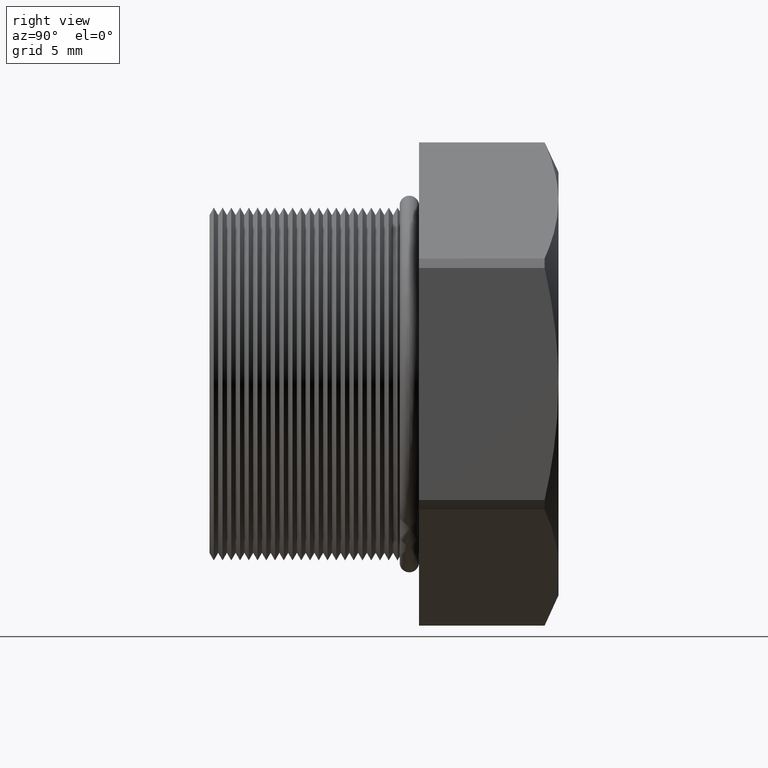
[diagram: clean part render]
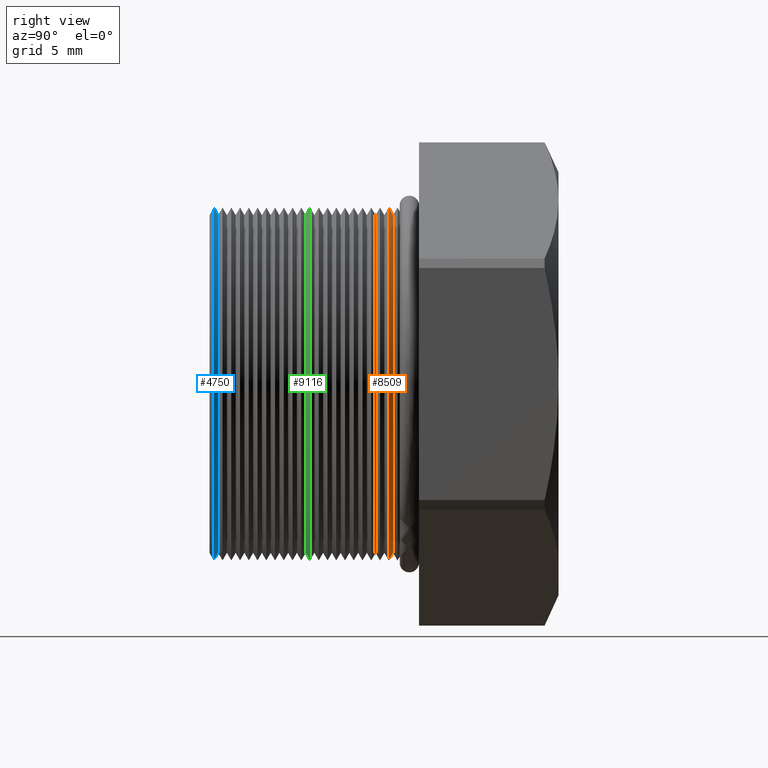
[diagram: same view with three faces highlighted in distinct colors, each labeled with its STEP entity id]
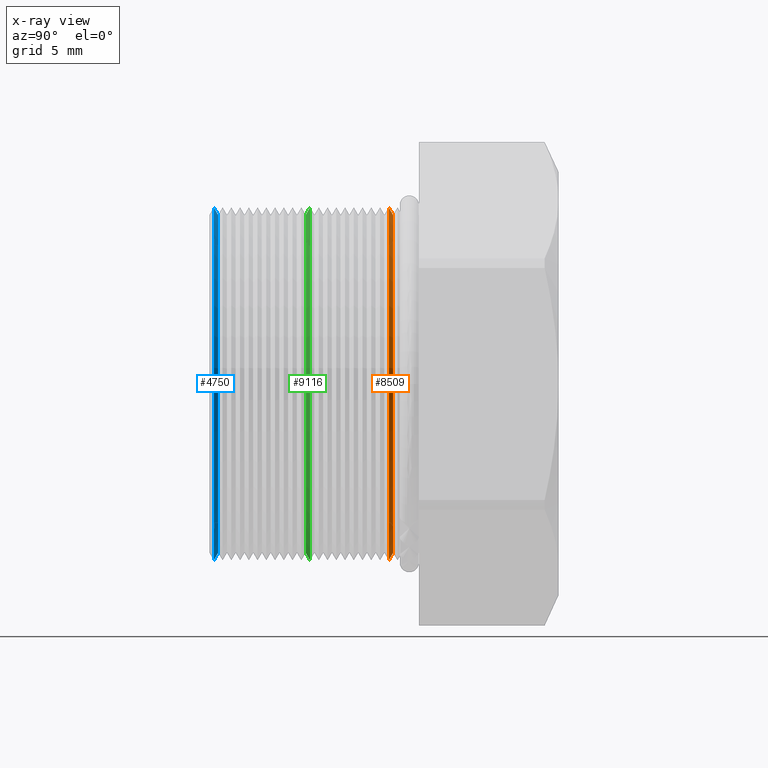
[diagram: x-ray of the same camera — body ghosted, the three highlighted faces saturated]
A machine part, right view with three faces highlighted in distinct colors.
The next image is the same camera in x-ray (body ghosted, the three faces saturated) — at least one of them is partly hidden behind the body in this view.
Their STEP definitions:

[orange] entity #8509 — the highlighted conical surface has half-angle 60 deg.
#5128 = CARTESIAN_POINT ( 'NONE',  ( 4.026318816969966200E-017, 0.09125489058294795900, 0.3287738815610546400 ) ) ;
#5146 = CARTESIAN_POINT ( 'NONE',  ( 0.0000000000000000000, 0.09920724481000890700, -0.3150000000000000000 ) ) ;
#5147 = CARTESIAN_POINT ( 'NONE',  ( 3.857637417314162700E-017, 0.09920724481000890700, 0.3150000000000000000 ) ) ;
#5173 = CARTESIAN_POINT ( 'NONE',  ( 0.0000000000000000000, 0.09125489058294795900, -0.3287738815610546400 ) ) ;
#5175 = DIRECTION ( 'NONE',  ( 0.0000000000000000000, 0.0000000000000000000, 1.000000000000000000 ) ) ;
#5176 = DIRECTION ( 'NONE',  ( -0.0000000000000000000, 1.000000000000000000, -0.0000000000000000000 ) ) ;
#5177 = CARTESIAN_POINT ( 'NONE',  ( 0.0000000000000000000, 0.09125489058294795900, 0.0000000000000000000 ) ) ;
#5178 = AXIS2_PLACEMENT_3D ( 'NONE', #5177, #5176, #5175 ) ;
#5179 = CIRCLE ( 'NONE', #5178, 0.3287738815610546400 ) ;
#5184 = DIRECTION ( 'NONE',  ( 0.0000000000000000000, 0.0000000000000000000, -1.000000000000000000 ) ) ;
#5185 = DIRECTION ( 'NONE',  ( 0.0000000000000000000, -1.000000000000000000, 0.0000000000000000000 ) ) ;
#5186 = CARTESIAN_POINT ( 'NONE',  ( 0.0000000000000000000, 0.09920724481000890700, 0.0000000000000000000 ) ) ;
#5187 = AXIS2_PLACEMENT_3D ( 'NONE', #5186, #5185, #5184 ) ;
#5188 = CONICAL_SURFACE ( 'NONE', #5187, 0.3150000000000000000, 1.047197551196597600 ) ;
#5189 = FACE_OUTER_BOUND ( 'NONE', #8535, .T. ) ;
#5193 = DIRECTION ( 'NONE',  ( 0.0000000000000000000, 0.0000000000000000000, -1.000000000000000000 ) ) ;
#5194 = DIRECTION ( 'NONE',  ( 0.0000000000000000000, -1.000000000000000000, 0.0000000000000000000 ) ) ;
#5195 = CARTESIAN_POINT ( 'NONE',  ( 0.0000000000000000000, 0.09920724481000890700, 0.0000000000000000000 ) ) ;
#5196 = AXIS2_PLACEMENT_3D ( 'NONE', #5195, #5194, #5193 ) ;
#5197 = CIRCLE ( 'NONE', #5196, 0.3150000000000000000 ) ;
#5206 = DIRECTION ( 'NONE',  ( 0.0000000000000000000, -0.5000000000000001100, -0.8660254037844386000 ) ) ;
#5207 = VECTOR ( 'NONE', #5206, 39.37007874015748100 ) ;
#5208 = CARTESIAN_POINT ( 'NONE',  ( 0.0000000000000000000, 0.09920724481000890700, -0.3150000000000000000 ) ) ;
#5209 = LINE ( 'NONE', #5208, #5207 ) ;
#5210 = DIRECTION ( 'NONE',  ( 1.060575238724906900E-016, -0.5000000000000001100, 0.8660254037844386000 ) ) ;
#5211 = VECTOR ( 'NONE', #5210, 39.37007874015748100 ) ;
#5212 = CARTESIAN_POINT ( 'NONE',  ( 3.857637417314162700E-017, 0.09920724481000890700, 0.3150000000000000000 ) ) ;
#5213 = LINE ( 'NONE', #5212, #5211 ) ;
#8497 = VERTEX_POINT ( 'NONE', #5147 ) ;
#8498 = VERTEX_POINT ( 'NONE', #5146 ) ;
#8505 = VERTEX_POINT ( 'NONE', #5128 ) ;
#8509 = ADVANCED_FACE ( 'NONE', ( #5189 ), #5188, .T. ) ;
#8511 = EDGE_CURVE ( 'NONE', #8505, #8514, #5179, .T. ) ;
#8514 = VERTEX_POINT ( 'NONE', #5173 ) ;
#8525 = ORIENTED_EDGE ( 'NONE', *, *, #8511, .T. ) ;
#8526 = EDGE_CURVE ( 'NONE', #8497, #8505, #5213, .T. ) ;
#8527 = EDGE_CURVE ( 'NONE', #8498, #8514, #5209, .T. ) ;
#8528 = ORIENTED_EDGE ( 'NONE', *, *, #8526, .T. ) ;
#8531 = ORIENTED_EDGE ( 'NONE', *, *, #8527, .F. ) ;
#8533 = EDGE_CURVE ( 'NONE', #8498, #8497, #5197, .T. ) ;
#8534 = ORIENTED_EDGE ( 'NONE', *, *, #8533, .T. ) ;
#8535 = EDGE_LOOP ( 'NONE', ( #8534, #8528, #8525, #8531 ) ) ;

[blue] entity #4750 — the highlighted conical surface has half-angle 60 deg.
#2811 = VERTEX_POINT ( 'NONE', #4854 ) ;
#2844 = VERTEX_POINT ( 'NONE', #4853 ) ;
#4115 = ORIENTED_EDGE ( 'NONE', *, *, #9936, .T. ) ;
#4169 = ORIENTED_EDGE ( 'NONE', *, *, #4273, .F. ) ;
#4171 = EDGE_CURVE ( 'NONE', #2811, #9935, #4856, .T. ) ;
#4212 = ORIENTED_EDGE ( 'NONE', *, *, #4171, .T. ) ;
#4273 = EDGE_CURVE ( 'NONE', #2844, #9932, #4913, .T. ) ;
#4722 = EDGE_LOOP ( 'NONE', ( #4798, #4212, #4115, #4169 ) ) ;
#4750 = ADVANCED_FACE ( 'NONE', ( #4947 ), #4941, .T. ) ;
#4798 = ORIENTED_EDGE ( 'NONE', *, *, #4810, .T. ) ;
#4810 = EDGE_CURVE ( 'NONE', #2844, #2811, #4936, .T. ) ;
#4853 = CARTESIAN_POINT ( 'NONE',  ( 0.0000000000000000000, -0.2267927551899911200, -0.3150000000000000000 ) ) ;
#4854 = CARTESIAN_POINT ( 'NONE',  ( 3.857637417314162700E-017, -0.2267927551899911200, 0.3150000000000000000 ) ) ;
#4855 = CARTESIAN_POINT ( 'NONE',  ( 3.857637417314162700E-017, -0.2267927551899911200, 0.3150000000000000000 ) ) ;
#4856 = LINE ( 'NONE', #4855, #4915 ) ;
#4910 = DIRECTION ( 'NONE',  ( 0.0000000000000000000, -0.5000000000000001100, -0.8660254037844386000 ) ) ;
#4911 = VECTOR ( 'NONE', #4910, 39.37007874015748100 ) ;
#4912 = CARTESIAN_POINT ( 'NONE',  ( 0.0000000000000000000, -0.2267927551899911200, -0.3150000000000000000 ) ) ;
#4913 = LINE ( 'NONE', #4912, #4911 ) ;
#4914 = DIRECTION ( 'NONE',  ( 1.060575238724906900E-016, -0.5000000000000001100, 0.8660254037844386000 ) ) ;
#4915 = VECTOR ( 'NONE', #4914, 39.37007874015748100 ) ;
#4932 = DIRECTION ( 'NONE',  ( 0.0000000000000000000, 0.0000000000000000000, -1.000000000000000000 ) ) ;
#4933 = DIRECTION ( 'NONE',  ( 0.0000000000000000000, -1.000000000000000000, 0.0000000000000000000 ) ) ;
#4934 = CARTESIAN_POINT ( 'NONE',  ( 0.0000000000000000000, -0.2267927551899911200, 0.0000000000000000000 ) ) ;
#4935 = AXIS2_PLACEMENT_3D ( 'NONE', #4934, #4933, #4932 ) ;
#4936 = CIRCLE ( 'NONE', #4935, 0.3150000000000000000 ) ;
#4937 = DIRECTION ( 'NONE',  ( 0.0000000000000000000, 0.0000000000000000000, -1.000000000000000000 ) ) ;
#4938 = DIRECTION ( 'NONE',  ( 0.0000000000000000000, -1.000000000000000000, 0.0000000000000000000 ) ) ;
#4939 = CARTESIAN_POINT ( 'NONE',  ( 0.0000000000000000000, -0.2267927551899911200, 0.0000000000000000000 ) ) ;
#4940 = AXIS2_PLACEMENT_3D ( 'NONE', #4939, #4938, #4937 ) ;
#4941 = CONICAL_SURFACE ( 'NONE', #4940, 0.3150000000000000000, 1.047197551196597600 ) ;
#4947 = FACE_OUTER_BOUND ( 'NONE', #4722, .T. ) ;
#7856 = CARTESIAN_POINT ( 'NONE',  ( 0.0000000000000000000, -0.2347451094170520100, -0.3287738815610546400 ) ) ;
#7914 = DIRECTION ( 'NONE',  ( 0.0000000000000000000, 0.0000000000000000000, 1.000000000000000000 ) ) ;
#7915 = DIRECTION ( 'NONE',  ( -0.0000000000000000000, 1.000000000000000000, -0.0000000000000000000 ) ) ;
#7916 = CARTESIAN_POINT ( 'NONE',  ( 0.0000000000000000000, -0.2347451094170520100, 0.0000000000000000000 ) ) ;
#7917 = AXIS2_PLACEMENT_3D ( 'NONE', #7916, #7915, #7914 ) ;
#7918 = CIRCLE ( 'NONE', #7917, 0.3287738815610546400 ) ;
#7919 = CARTESIAN_POINT ( 'NONE',  ( 4.026318816969965600E-017, -0.2347451094170520100, 0.3287738815610546400 ) ) ;
#9932 = VERTEX_POINT ( 'NONE', #7856 ) ;
#9935 = VERTEX_POINT ( 'NONE', #7919 ) ;
#9936 = EDGE_CURVE ( 'NONE', #9935, #9932, #7918, .T. ) ;

[green] entity #9116 — the highlighted conical surface has half-angle 60 deg.
#6352 = CARTESIAN_POINT ( 'NONE',  ( 0.0000000000000000000, -0.05544510941705203800, 0.0000000000000000000 ) ) ;
#6353 = CONICAL_SURFACE ( 'NONE', #6413, 0.3287738815610546400, 1.047197551196597600 ) ;
#6354 = FACE_OUTER_BOUND ( 'NONE', #9122, .T. ) ;
#6391 = CARTESIAN_POINT ( 'NONE',  ( 3.857637417314162700E-017, -0.06339746364411297200, 0.3150000000000000000 ) ) ;
#6392 = DIRECTION ( 'NONE',  ( 0.0000000000000000000, 0.0000000000000000000, 1.000000000000000000 ) ) ;
#6393 = DIRECTION ( 'NONE',  ( -0.0000000000000000000, 1.000000000000000000, -0.0000000000000000000 ) ) ;
#6394 = CARTESIAN_POINT ( 'NONE',  ( 0.0000000000000000000, -0.06339746364411297200, 0.0000000000000000000 ) ) ;
#6395 = AXIS2_PLACEMENT_3D ( 'NONE', #6394, #6393, #6392 ) ;
#6396 = CIRCLE ( 'NONE', #6395, 0.3150000000000000000 ) ;
#6411 = DIRECTION ( 'NONE',  ( 0.0000000000000000000, 0.0000000000000000000, 1.000000000000000000 ) ) ;
#6412 = DIRECTION ( 'NONE',  ( -0.0000000000000000000, 1.000000000000000000, -0.0000000000000000000 ) ) ;
#6413 = AXIS2_PLACEMENT_3D ( 'NONE', #6352, #6412, #6411 ) ;
#8227 = DIRECTION ( 'NONE',  ( -0.0000000000000000000, 1.000000000000000000, -0.0000000000000000000 ) ) ;
#8228 = CARTESIAN_POINT ( 'NONE',  ( 0.0000000000000000000, -0.05544510941705203800, 0.0000000000000000000 ) ) ;
#8229 = AXIS2_PLACEMENT_3D ( 'NONE', #8228, #8227, #8292 ) ;
#8230 = CIRCLE ( 'NONE', #8229, 0.3287738815610546400 ) ;
#8237 = CARTESIAN_POINT ( 'NONE',  ( 0.0000000000000000000, -0.05544510941705203800, -0.3287738815610546400 ) ) ;
#8242 = DIRECTION ( 'NONE',  ( 0.0000000000000000000, 0.5000000000000001100, 0.8660254037844386000 ) ) ;
#8243 = VECTOR ( 'NONE', #8242, 39.37007874015748100 ) ;
#8244 = CARTESIAN_POINT ( 'NONE',  ( 0.0000000000000000000, -0.05544510941705203800, 0.3287738815610546400 ) ) ;
#8245 = LINE ( 'NONE', #8244, #8243 ) ;
#8253 = CARTESIAN_POINT ( 'NONE',  ( 4.026318816969966200E-017, -0.05544510941705203800, 0.3287738815610546400 ) ) ;
#8265 = CARTESIAN_POINT ( 'NONE',  ( 0.0000000000000000000, -0.06339746364411297200, -0.3150000000000000000 ) ) ;
#8267 = DIRECTION ( 'NONE',  ( 1.060575238724906900E-016, 0.5000000000000001100, -0.8660254037844386000 ) ) ;
#8268 = VECTOR ( 'NONE', #8267, 39.37007874015748100 ) ;
#8269 = CARTESIAN_POINT ( 'NONE',  ( 4.026318816969965600E-017, -0.05544510941705203800, -0.3287738815610546400 ) ) ;
#8270 = LINE ( 'NONE', #8269, #8268 ) ;
#8292 = DIRECTION ( 'NONE',  ( 0.0000000000000000000, 0.0000000000000000000, 1.000000000000000000 ) ) ;
#9116 = ADVANCED_FACE ( 'NONE', ( #6354 ), #6353, .T. ) ;
#9122 = EDGE_LOOP ( 'NONE', ( #9123, #10250, #10224, #10220 ) ) ;
#9123 = ORIENTED_EDGE ( 'NONE', *, *, #9124, .T. ) ;
#9124 = EDGE_CURVE ( 'NONE', #9126, #10253, #6396, .T. ) ;
#9126 = VERTEX_POINT ( 'NONE', #6391 ) ;
#10220 = ORIENTED_EDGE ( 'NONE', *, *, #10227, .F. ) ;
#10221 = VERTEX_POINT ( 'NONE', #8253 ) ;
#10224 = ORIENTED_EDGE ( 'NONE', *, *, #10233, .F. ) ;
#10227 = EDGE_CURVE ( 'NONE', #9126, #10221, #8245, .T. ) ;
#10231 = VERTEX_POINT ( 'NONE', #8237 ) ;
#10233 = EDGE_CURVE ( 'NONE', #10221, #10231, #8230, .T. ) ;
#10250 = ORIENTED_EDGE ( 'NONE', *, *, #10251, .T. ) ;
#10251 = EDGE_CURVE ( 'NONE', #10253, #10231, #8270, .T. ) ;
#10253 = VERTEX_POINT ( 'NONE', #8265 ) ;